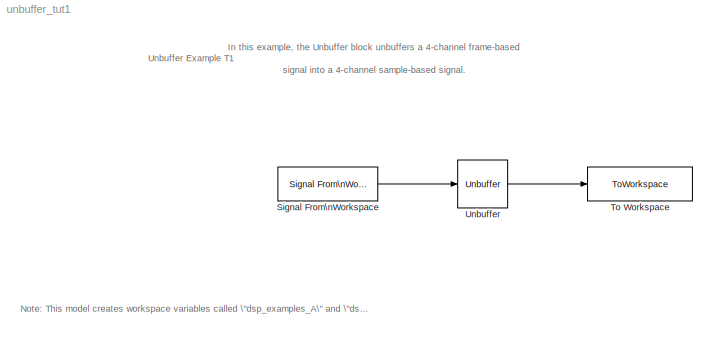
MODEL unbuffer_tut1
KIND model
CONFIG AbsTol = auto
CONFIG FixedStep = auto
CONFIG MaxStep = auto
CONFIG MinStep = auto
CONFIG PostLoadFcn = set_param(gcs,'SimulationCommand','Update')
CONFIG PreLoadFcn = dsp_examples_A = [1 0 1 -1;2 0 1 -2;3 0 0 -3;4 0 0 -4;5 0 1 -5;6 0 1 -6;7 0 0 -7;8 0 0 -8;9 0 1 -9];whos dsp_examples_*
CONFIG RelTol = 1e-3
CONFIG Solver = FixedStepDiscrete
CONFIG SolverMode = Auto
CONFIG StartTime = 0.0
CONFIG StopTime = 10.0
BLOCK [Reference] Signal From\nWorkspace  REF=dspsrcs4/Signal From\nWorkspace
  OutputAfterFinalValue = Setting to zero
  Ports = [0, 1]
  SourceBlock = dspsrcs4/Signal From\nWorkspace
  SourceType = Signal From Workspace
  Ts = 1
  X = dsp_examples_A
  nsamps = 3
BLOCK [ToWorkspace] To Workspace
  MaxDataPoints = inf
  SampleTime = -1
  SaveFormat = Array
  VariableName = dsp_examples_yout
BLOCK [Reference] Unbuffer  REF=dspbuff3/Unbuffer
  Ports = [1, 1]
  SourceBlock = dspbuff3/Unbuffer
  SourceType = Unbuffer
  ic = 0
ANNOTATION (root): In this example, the Unbuffer block unbuffers a 4-channel frame-based\nsignal into a 4-channel sample-based signal.
ANNOTATION (root): Note: This model creates workspace variables called \"dsp_examples_A\" and \"dsp_examples_yout\".
ANNOTATION (root): Unbuffer Example T1
LINE Signal From\nWorkspace:1 -> Unbuffer:1
LINE Unbuffer:1 -> To Workspace:1
